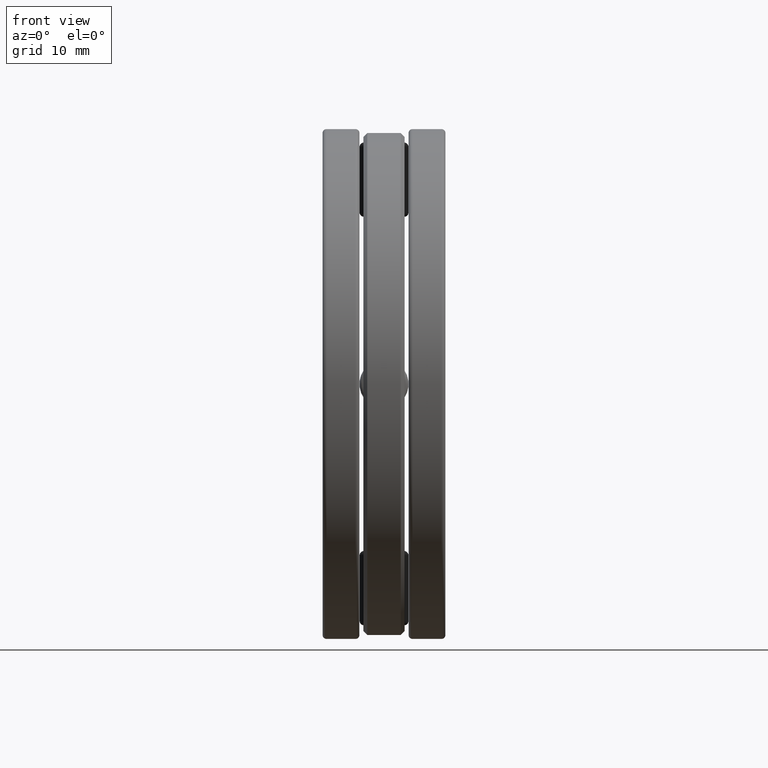
[diagram: clean part render]
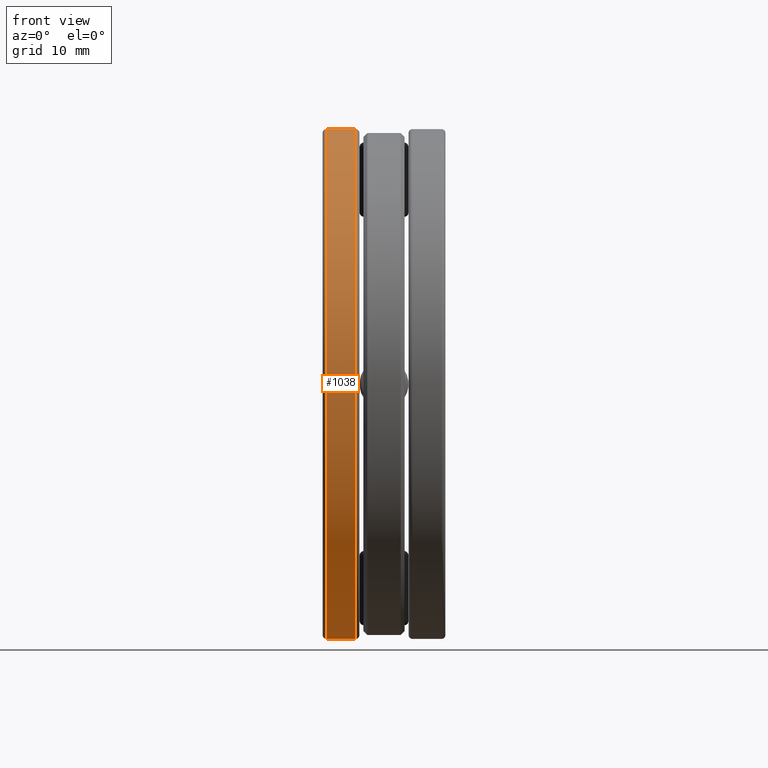
[diagram: same view with one face highlighted and labeled with its STEP entity id]
A machine part, front view. The second image highlights one B-rep face of the part: STEP entity #1038.
In plain terms, the highlighted cylindrical surface (bore or boss wall) has radius 32.9406 mm, axis along (-1, -0, -0).
Its self-contained STEP definition (entity closure, byte-faithful):
#54 = VERTEX_POINT ( 'NONE', #370 ) ;
#128 = AXIS2_PLACEMENT_3D ( 'NONE', #559, #1229, #670 ) ;
#297 = DIRECTION ( 'NONE',  ( -1.000000000000000000, -0.0000000000000000000, -0.0000000000000000000 ) ) ;
#370 = CARTESIAN_POINT ( 'NONE',  ( -0.2925000000000000900, 0.0000000000000000000, 1.296875000000000000 ) ) ;
#559 = CARTESIAN_POINT ( 'NONE',  ( -0.1450000000000000200, 0.0000000000000000000, 0.0000000000000000000 ) ) ;
#605 = DIRECTION ( 'NONE',  ( 0.0000000000000000000, 0.0000000000000000000, 1.000000000000000000 ) ) ;
#635 = FACE_OUTER_BOUND ( 'NONE', #1021, .T. ) ;
#670 = DIRECTION ( 'NONE',  ( 0.0000000000000000000, 0.0000000000000000000, 1.000000000000000000 ) ) ;
#709 = FACE_OUTER_BOUND ( 'NONE', #1199, .T. ) ;
#714 = ORIENTED_EDGE ( 'NONE', *, *, #791, .F. ) ;
#791 = EDGE_CURVE ( 'NONE', #54, #54, #1380, .T. ) ;
#900 = CYLINDRICAL_SURFACE ( 'NONE', #956, 1.296875000000000000 ) ;
#956 = AXIS2_PLACEMENT_3D ( 'NONE', #1193, #297, #1431 ) ;
#974 = CARTESIAN_POINT ( 'NONE',  ( -0.1450000000000000200, 0.0000000000000000000, 1.296875000000000000 ) ) ;
#1010 = AXIS2_PLACEMENT_3D ( 'NONE', #1184, #1049, #605 ) ;
#1021 = EDGE_LOOP ( 'NONE', ( #1306 ) ) ;
#1038 = ADVANCED_FACE ( 'NONE', ( #709, #635 ), #900, .T. ) ;
#1049 = DIRECTION ( 'NONE',  ( -1.000000000000000000, -0.0000000000000000000, -0.0000000000000000000 ) ) ;
#1087 = CIRCLE ( 'NONE', #128, 1.296875000000000000 ) ;
#1123 = VERTEX_POINT ( 'NONE', #974 ) ;
#1184 = CARTESIAN_POINT ( 'NONE',  ( -0.2925000000000000900, 0.0000000000000000000, 0.0000000000000000000 ) ) ;
#1193 = CARTESIAN_POINT ( 'NONE',  ( 0.0000000000000000000, 0.0000000000000000000, 0.0000000000000000000 ) ) ;
#1199 = EDGE_LOOP ( 'NONE', ( #714 ) ) ;
#1229 = DIRECTION ( 'NONE',  ( -1.000000000000000000, -0.0000000000000000000, -0.0000000000000000000 ) ) ;
#1306 = ORIENTED_EDGE ( 'NONE', *, *, #1465, .T. ) ;
#1380 = CIRCLE ( 'NONE', #1010, 1.296875000000000000 ) ;
#1431 = DIRECTION ( 'NONE',  ( 0.0000000000000000000, 0.0000000000000000000, 1.000000000000000000 ) ) ;
#1465 = EDGE_CURVE ( 'NONE', #1123, #1123, #1087, .T. ) ;